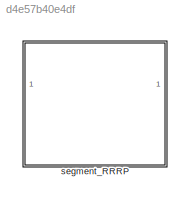
MODEL slx_d4e57b40e4df
KIND library
CONFIG AbsTol = auto
CONFIG EnableMultiTasking = off
CONFIG FixedStep = auto
CONFIG MaxStep = auto
CONFIG MinStep = auto
CONFIG RelTol = 1e-3
CONFIG SampleTimeConstraint = Unconstrained
CONFIG Solver = VariableStepAuto
CONFIG SolverName = VariableStepAuto
CONFIG StartTime = 0.0
CONFIG StopTime = 10.0
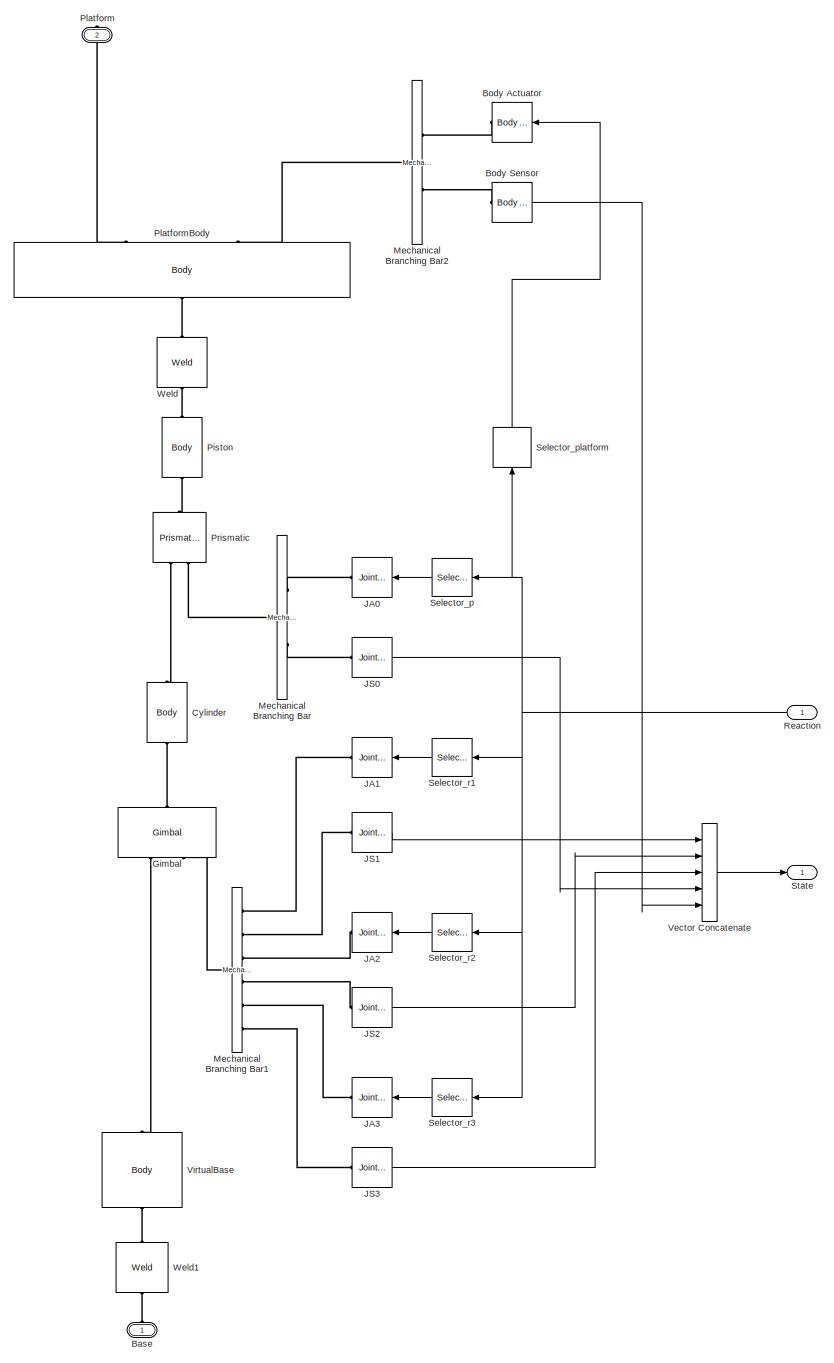
[diagram: segment_RRRP - part 1/1, most of the canvas]
BLOCK [SubSystem] segment_RRRP
  Ports = [1, 1, 0, 0, 0, 1, 1]
  RequestExecContextInheritance = off
  Variant = off
BLOCK [PMIOPort] segment_RRRP/Base
  Port = 1
  Side = Left
BLOCK [Reference] segment_RRRP/Body Actuator  REF=mblibv1/Sensors & 
Actuators/Body Actuator
  Ports = [1, 0, 0, 0, 0, 0, 1]
  SourceBlock = mblibv1/Sensors & \nActuators/Body Actuator
  SourceProductBaseCode = MS
  SourceProductName = Simscape Multibody
  SourceType = Body Actuator
BLOCK [Reference] segment_RRRP/Body Sensor  REF=mblibv1/Sensors & 
Actuators/Body Sensor
  Ports = [0, 1, 0, 0, 0, 1]
  SourceBlock = mblibv1/Sensors & \nActuators/Body Sensor
  SourceProductBaseCode = MS
  SourceProductName = Simscape Multibody
  SourceType = Body Sensor
BLOCK [Reference] segment_RRRP/Cylinder  REF=mblibv1/Bodies/Body
  Ports = [0, 0, 0, 0, 0, 1, 1]
  SourceBlock = mblibv1/Bodies/Body
  SourceProductBaseCode = MS
  SourceProductName = Simscape Multibody
  SourceType = Body
BLOCK [Reference] segment_RRRP/Gimbal  REF=mblibv1/Joints/Gimbal
  Ports = [0, 0, 0, 0, 0, 2, 1]
  SourceBlock = mblibv1/Joints/Gimbal
  SourceProductBaseCode = MS
  SourceProductName = Simscape Multibody
  SourceType = Gimbal
BLOCK [Reference] segment_RRRP/JA0  REF=mblibv1/Sensors & 
Actuators/Joint Actuator
  Ports = [1, 0, 0, 0, 0, 0, 1]
  SourceBlock = mblibv1/Sensors & \nActuators/Joint Actuator
  SourceProductBaseCode = MS
  SourceProductName = Simscape Multibody
  SourceType = Joint Actuator
BLOCK [Reference] segment_RRRP/JA1  REF=mblibv1/Sensors & 
Actuators/Joint Actuator
  Ports = [1, 0, 0, 0, 0, 0, 1]
  SourceBlock = mblibv1/Sensors & \nActuators/Joint Actuator
  SourceProductBaseCode = MS
  SourceProductName = Simscape Multibody
  SourceType = Joint Actuator
BLOCK [Reference] segment_RRRP/JA2  REF=mblibv1/Sensors & 
Actuators/Joint Actuator
  Ports = [1, 0, 0, 0, 0, 0, 1]
  SourceBlock = mblibv1/Sensors & \nActuators/Joint Actuator
  SourceProductBaseCode = MS
  SourceProductName = Simscape Multibody
  SourceType = Joint Actuator
BLOCK [Reference] segment_RRRP/JA3  REF=mblibv1/Sensors & 
Actuators/Joint Actuator
  Ports = [1, 0, 0, 0, 0, 0, 1]
  SourceBlock = mblibv1/Sensors & \nActuators/Joint Actuator
  SourceProductBaseCode = MS
  SourceProductName = Simscape Multibody
  SourceType = Joint Actuator
BLOCK [Reference] segment_RRRP/JS0  REF=mblibv1/Sensors & 
Actuators/Joint Sensor
  Ports = [0, 1, 0, 0, 0, 1]
  SourceBlock = mblibv1/Sensors & \nActuators/Joint Sensor
  SourceProductBaseCode = MS
  SourceProductName = Simscape Multibody
  SourceType = Joint Sensor
BLOCK [Reference] segment_RRRP/JS1  REF=mblibv1/Sensors & 
Actuators/Joint Sensor
  Ports = [0, 1, 0, 0, 0, 1]
  SourceBlock = mblibv1/Sensors & \nActuators/Joint Sensor
  SourceProductBaseCode = MS
  SourceProductName = Simscape Multibody
  SourceType = Joint Sensor
BLOCK [Reference] segment_RRRP/JS2  REF=mblibv1/Sensors & 
Actuators/Joint Sensor
  Ports = [0, 1, 0, 0, 0, 1]
  SourceBlock = mblibv1/Sensors & \nActuators/Joint Sensor
  SourceProductBaseCode = MS
  SourceProductName = Simscape Multibody
  SourceType = Joint Sensor
BLOCK [Reference] segment_RRRP/JS3  REF=mblibv1/Sensors & 
Actuators/Joint Sensor
  Ports = [0, 1, 0, 0, 0, 1]
  SourceBlock = mblibv1/Sensors & \nActuators/Joint Sensor
  SourceProductBaseCode = MS
  SourceProductName = Simscape Multibody
  SourceType = Joint Sensor
BLOCK [Reference] segment_RRRP/Mechanical Branching Bar  REF=mblibv1/Utilities/Mechanical
Branching
Bar
  Ports = [0, 0, 0, 0, 0, 1, 2]
  SourceBlock = mblibv1/Utilities/Mechanical\nBranching\nBar
  SourceProductBaseCode = MS
  SourceProductName = Simscape Multibody
  SourceType = Mechanical Branching Bar
BLOCK [Reference] segment_RRRP/Mechanical Branching Bar1  REF=mblibv1/Utilities/Mechanical
Branching
Bar
  Ports = [0, 0, 0, 0, 0, 1, 6]
  SourceBlock = mblibv1/Utilities/Mechanical\nBranching\nBar
  SourceProductBaseCode = MS
  SourceProductName = Simscape Multibody
  SourceType = Mechanical Branching Bar
BLOCK [Reference] segment_RRRP/Mechanical Branching Bar2  REF=mblibv1/Utilities/Mechanical
Branching
Bar
  Ports = [0, 0, 0, 0, 0, 1, 2]
  SourceBlock = mblibv1/Utilities/Mechanical\nBranching\nBar
  SourceProductBaseCode = MS
  SourceProductName = Simscape Multibody
  SourceType = Mechanical Branching Bar
BLOCK [Reference] segment_RRRP/Piston  REF=mblibv1/Bodies/Body
  Ports = [0, 0, 0, 0, 0, 1, 1]
  SourceBlock = mblibv1/Bodies/Body
  SourceProductBaseCode = MS
  SourceProductName = Simscape Multibody
  SourceType = Body
BLOCK [PMIOPort] segment_RRRP/Platform
  Port = 2
  Side = Right
BLOCK [Reference] segment_RRRP/PlatformBody  REF=mblibv1/Bodies/Body
  Ports = [0, 0, 0, 0, 0, 2, 1]
  SourceBlock = mblibv1/Bodies/Body
  SourceProductBaseCode = MS
  SourceProductName = Simscape Multibody
  SourceType = Body
BLOCK [Reference] segment_RRRP/Prismatic  REF=mblibv1/Joints/Prismatic
  Ports = [0, 0, 0, 0, 0, 2, 1]
  SourceBlock = mblibv1/Joints/Prismatic
  SourceProductBaseCode = MS
  SourceProductName = Simscape Multibody
  SourceType = Prismatic
BLOCK [Inport] segment_RRRP/Reaction
  IconDisplay = Port number
  OutDataTypeStr = double
BLOCK [Selector] segment_RRRP/Selector_p
  IndexOptions = Index vector (dialog)
  Indices = [4]
  InputPortWidth = 10
  OutputSizes = 1
  Ports = [1, 1]
BLOCK [Selector] segment_RRRP/Selector_platform
  IndexOptions = Index vector (dialog)
  Indices = [5 6 7 8 9 10]
  InputPortWidth = 10
  OutputSizes = 1
  Ports = [1, 1]
BLOCK [Selector] segment_RRRP/Selector_r1
  IndexOptions = Index vector (dialog)
  Indices = [1]
  InputPortWidth = 10
  OutputSizes = 1
  Ports = [1, 1]
BLOCK [Selector] segment_RRRP/Selector_r2
  IndexOptions = Index vector (dialog)
  Indices = [2]
  InputPortWidth = 10
  OutputSizes = 1
  Ports = [1, 1]
BLOCK [Selector] segment_RRRP/Selector_r3
  IndexOptions = Index vector (dialog)
  Indices = [3]
  InputPortWidth = 10
  OutputSizes = 1
  Ports = [1, 1]
BLOCK [Outport] segment_RRRP/State
  IconDisplay = Port number
  OutDataTypeStr = double
BLOCK [Concatenate] segment_RRRP/Vector Concatenate
  NumInputs = 5
  Ports = [5, 1]
BLOCK [Reference] segment_RRRP/VirtualBase  REF=mblibv1/Bodies/Body
  Ports = [0, 0, 0, 0, 0, 1, 1]
  SourceBlock = mblibv1/Bodies/Body
  SourceProductBaseCode = MS
  SourceProductName = Simscape Multibody
  SourceType = Body
BLOCK [Reference] segment_RRRP/Weld  REF=mblibv1/Joints/Weld
  Ports = [0, 0, 0, 0, 0, 1, 1]
  SourceBlock = mblibv1/Joints/Weld
  SourceProductBaseCode = MS
  SourceProductName = Simscape Multibody
  SourceType = Weld
BLOCK [Reference] segment_RRRP/Weld1  REF=mblibv1/Joints/Weld
  Ports = [0, 0, 0, 0, 0, 1, 1]
  SourceBlock = mblibv1/Joints/Weld
  SourceProductBaseCode = MS
  SourceProductName = Simscape Multibody
  SourceType = Weld
LINE segment_RRRP/Body Sensor:1 -> segment_RRRP/Vector Concatenate:5
LINE segment_RRRP/JS0:1 -> segment_RRRP/Vector Concatenate:4
LINE segment_RRRP/JS1:1 -> segment_RRRP/Vector Concatenate:1
LINE segment_RRRP/JS2:1 -> segment_RRRP/Vector Concatenate:2
LINE segment_RRRP/JS3:1 -> segment_RRRP/Vector Concatenate:3
NET segment_RRRP/Reaction:1 -> segment_RRRP/Selector_p:1, segment_RRRP/Selector_platform:1, segment_RRRP/Selector_r1:1, segment_RRRP/Selector_r2:1, segment_RRRP/Selector_r3:1
LINE segment_RRRP/Selector_p:1 -> segment_RRRP/JA0:1
LINE segment_RRRP/Selector_platform:1 -> segment_RRRP/Body Actuator:1
LINE segment_RRRP/Selector_r1:1 -> segment_RRRP/JA1:1
LINE segment_RRRP/Selector_r2:1 -> segment_RRRP/JA2:1
LINE segment_RRRP/Selector_r3:1 -> segment_RRRP/JA3:1
LINE segment_RRRP/Vector Concatenate:1 -> segment_RRRP/State:1
PLINE segment_RRRP/Base:RConn1 -- segment_RRRP/Weld1:LConn1
PLINE segment_RRRP/Body Actuator:RConn1 -- segment_RRRP/Mechanical Branching Bar2:RConn1
PLINE segment_RRRP/Body Sensor:LConn1 -- segment_RRRP/Mechanical Branching Bar2:RConn2
PLINE segment_RRRP/Cylinder:LConn1 -- segment_RRRP/Prismatic:LConn1
PLINE segment_RRRP/Cylinder:RConn1 -- segment_RRRP/Gimbal:RConn1
PLINE segment_RRRP/Gimbal:LConn1 -- segment_RRRP/VirtualBase:LConn1
PLINE segment_RRRP/Gimbal:LConn2 -- segment_RRRP/Mechanical Branching Bar1:LConn1
PLINE segment_RRRP/JA0:RConn1 -- segment_RRRP/Mechanical Branching Bar:RConn1
PLINE segment_RRRP/JA1:RConn1 -- segment_RRRP/Mechanical Branching Bar1:RConn1
PLINE segment_RRRP/JA2:RConn1 -- segment_RRRP/Mechanical Branching Bar1:RConn3
PLINE segment_RRRP/JA3:RConn1 -- segment_RRRP/Mechanical Branching Bar1:RConn5
PLINE segment_RRRP/JS0:LConn1 -- segment_RRRP/Mechanical Branching Bar:RConn2
PLINE segment_RRRP/JS1:LConn1 -- segment_RRRP/Mechanical Branching Bar1:RConn2
PLINE segment_RRRP/JS2:LConn1 -- segment_RRRP/Mechanical Branching Bar1:RConn4
PLINE segment_RRRP/JS3:LConn1 -- segment_RRRP/Mechanical Branching Bar1:RConn6
PLINE segment_RRRP/Mechanical Branching Bar2:LConn1 -- segment_RRRP/PlatformBody:LConn2
PLINE segment_RRRP/Mechanical Branching Bar:LConn1 -- segment_RRRP/Prismatic:LConn2
PLINE segment_RRRP/Piston:LConn1 -- segment_RRRP/Weld:LConn1
PLINE segment_RRRP/Piston:RConn1 -- segment_RRRP/Prismatic:RConn1
PLINE segment_RRRP/Platform:RConn1 -- segment_RRRP/PlatformBody:LConn1
PLINE segment_RRRP/PlatformBody:RConn1 -- segment_RRRP/Weld:RConn1
PLINE segment_RRRP/VirtualBase:RConn1 -- segment_RRRP/Weld1:RConn1
note: NET lines group one-source signal fan-out (src -> all destinations, sorted); 1:1 wires keep LINE
